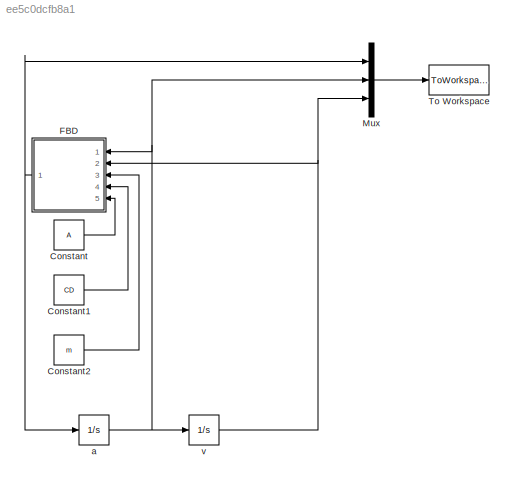
MODEL slx_ee5c0dcfb8a1
KIND model
BLOCK [Constant] Constant
  Value = A
BLOCK [Constant] Constant1
  Value = CD
BLOCK [Constant] Constant2
  Value = m
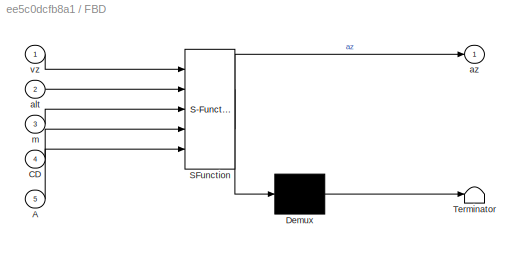
BLOCK [SubSystem] FBD
  ErrorFcn = Stateflow.Translate.translate
  FunctionWithSeparateData = off
  MaskHideContents = off
  MinAlgLoopOccurrences = off
  Opaque = off
  PermitHierarchicalResolution = ExplicitOnly
  Ports = [5, 1]
  PropExecContextOutsideSubsystem = off
  RTWSystemCode = Auto
  RequestExecContextInheritance = off
  SFBlockType = MATLAB Function
  TreatAsAtomicUnit = on
BLOCK [Demux] FBD/ Demux 
  Outputs = 1
  Ports = [1, 1]
BLOCK [S-Function] FBD/ SFunction 
  EnableBusSupport = on
  FunctionName = sf_sfun
  PortCounts = [5 2]
  Ports = [5, 2]
  Tag = Stateflow S-Function descent_model 2
BLOCK [Terminator] FBD/ Terminator 
BLOCK [Inport] FBD/A
  IconDisplay = Port number
  Port = 5
BLOCK [Inport] FBD/CD
  IconDisplay = Port number
  Port = 4
BLOCK [Inport] FBD/alt
  IconDisplay = Port number
  Port = 2
BLOCK [Outport] FBD/az
  IconDisplay = Port number
BLOCK [Inport] FBD/m
  IconDisplay = Port number
  Port = 3
BLOCK [Inport] FBD/vz
  IconDisplay = Port number
BLOCK [Mux] Mux
  DisplayOption = bar
  Inputs = 3
  Ports = [3, 1]
BLOCK [ToWorkspace] To Workspace
  MaxDataPoints = inf
  Ports = [1]
  SampleTime = -1
  SaveFormat = Timeseries
  VariableName = simout
BLOCK [Integrator] a
  InitialCondition = v0
  Ports = [1, 1]
BLOCK [Integrator] v
  InitialCondition = alt0
  Ports = [1, 1]
LINE Constant1:1 -> FBD:4
LINE Constant2:1 -> FBD:3
LINE Constant:1 -> FBD:5
NET FBD:1 -> Mux:1, a:1
LINE Mux:1 -> To Workspace:1
NET a:1 -> FBD:1, Mux:2, v:1
NET v:1 -> FBD:2, Mux:3
note: NET lines group one-source signal fan-out (src -> all destinations, sorted); 1:1 wires keep LINE
